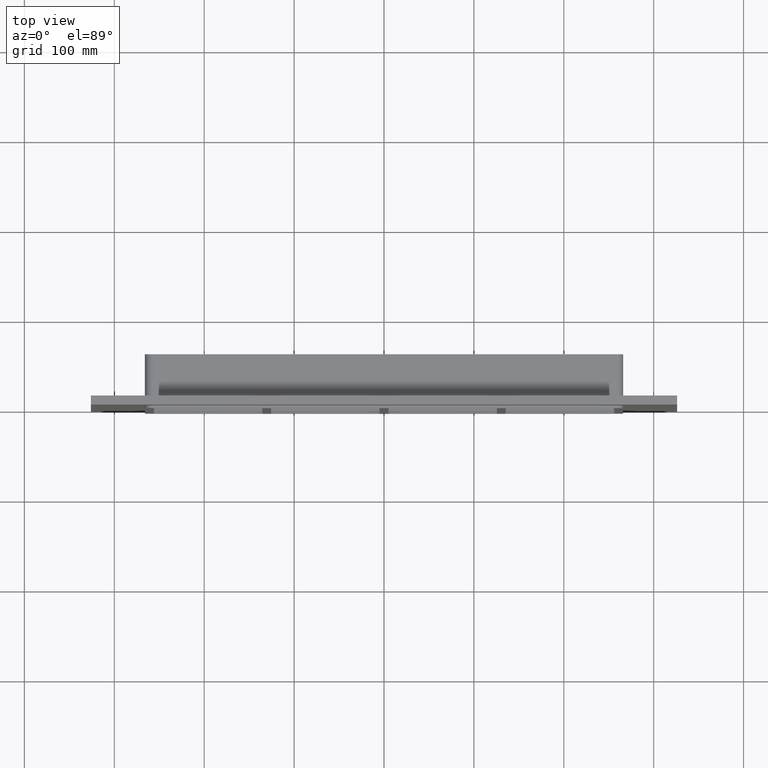
[diagram: clean part render]
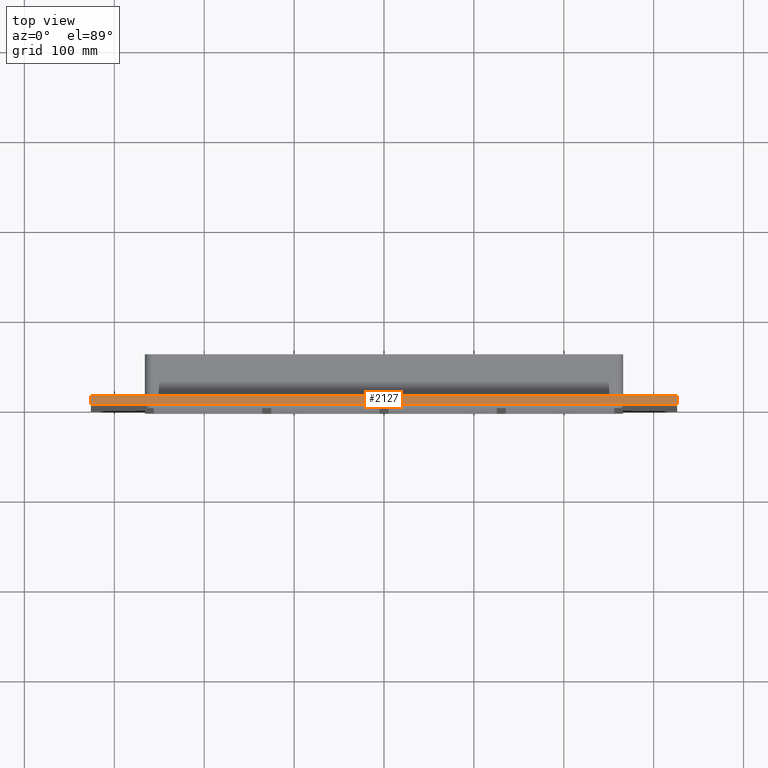
[diagram: same view with one face highlighted and labeled with its STEP entity id]
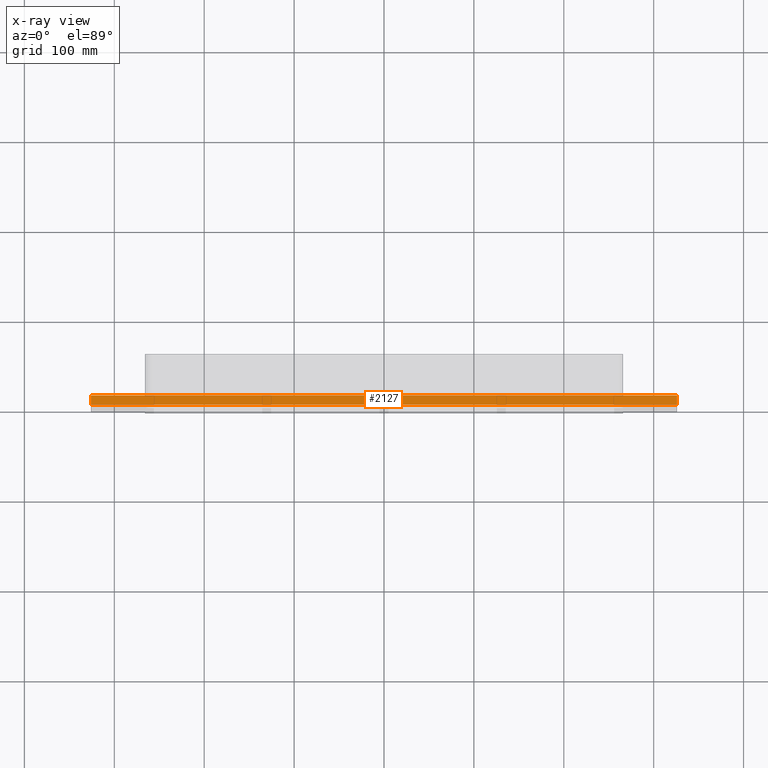
[diagram: x-ray of the same camera — body ghosted, the highlighted face saturated]
A machine part, top view. The second image highlights one B-rep face of the part: STEP entity #2127.
The next image is the same camera in x-ray: the body ghosted, the highlighted face saturated — about 0% of this face is hidden behind the body in this view.
In plain terms, the highlighted planar face has unit normal (0, 0, 1).
Its self-contained STEP definition (entity closure, byte-faithful):
#1845=CARTESIAN_POINT('',(-325.99999999999994,10.0,241.5));
#1846=VERTEX_POINT('',#1845);
#1847=CARTESIAN_POINT('',(325.99999999999994,10.0,241.5));
#1848=VERTEX_POINT('',#1847);
#1849=CARTESIAN_POINT('',(-325.99999999999994,10.0,241.5));
#1850=DIRECTION('',(1.0,0.0,0.0));
#1851=VECTOR('',#1850,651.99999999999989);
#1852=LINE('',#1849,#1851);
#1853=EDGE_CURVE('',#1846,#1848,#1852,.T.);
#1955=CARTESIAN_POINT('',(-325.99999999999994,0.0,241.5));
#1956=VERTEX_POINT('',#1955);
#1957=CARTESIAN_POINT('',(326.0,0.0,241.5));
#1958=VERTEX_POINT('',#1957);
#1959=CARTESIAN_POINT('',(-325.99999999999994,0.0,241.5));
#1960=DIRECTION('',(1.0,0.0,0.0));
#1961=VECTOR('',#1960,651.99999999999989);
#1962=LINE('',#1959,#1961);
#1963=EDGE_CURVE('',#1956,#1958,#1962,.T.);
#2066=CARTESIAN_POINT('',(-325.99999999999994,0.0,241.5));
#2067=DIRECTION('',(0.0,1.0,0.0));
#2068=VECTOR('',#2067,10.0);
#2069=LINE('',#2066,#2068);
#2070=EDGE_CURVE('',#1956,#1846,#2069,.T.);
#2107=CARTESIAN_POINT('',(326.0,0.0,241.5));
#2108=DIRECTION('',(0.0,1.0,0.0));
#2109=VECTOR('',#2108,10.0);
#2110=LINE('',#2107,#2109);
#2111=EDGE_CURVE('',#1958,#1848,#2110,.T.);
#2116=CARTESIAN_POINT('',(-325.99999999999994,0.0,241.5));
#2117=DIRECTION('',(0.0,0.0,1.0));
#2118=DIRECTION('',(1.0,0.0,0.0));
#2119=AXIS2_PLACEMENT_3D('',#2116,#2117,#2118);
#2120=PLANE('',#2119);
#2121=ORIENTED_EDGE('',*,*,#1963,.T.);
#2122=ORIENTED_EDGE('',*,*,#2111,.T.);
#2123=ORIENTED_EDGE('',*,*,#1853,.F.);
#2124=ORIENTED_EDGE('',*,*,#2070,.F.);
#2125=EDGE_LOOP('',(#2121,#2122,#2123,#2124));
#2126=FACE_OUTER_BOUND('',#2125,.T.);
#2127=ADVANCED_FACE('',(#2126),#2120,.T.);